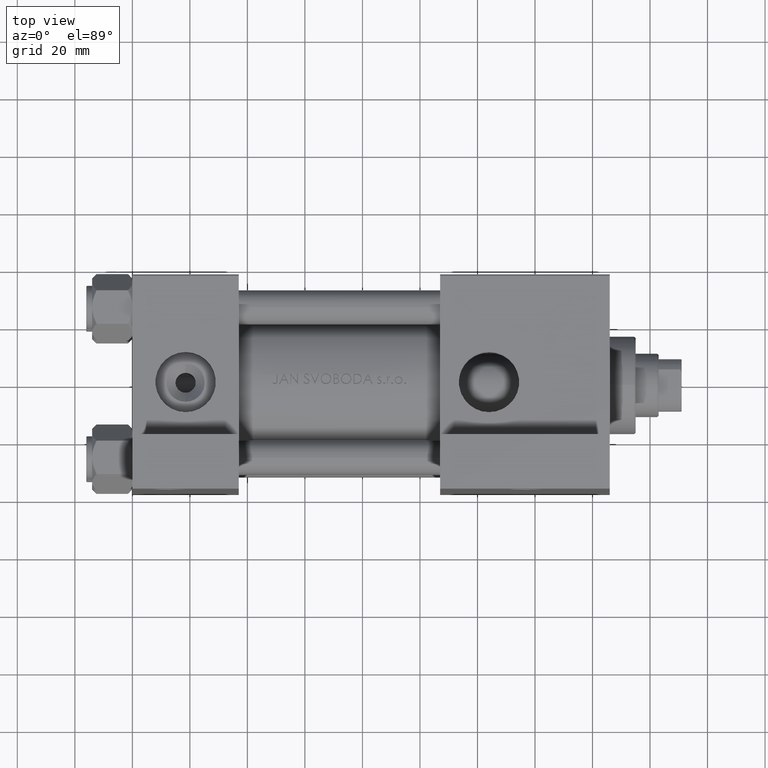
[diagram: clean part render]
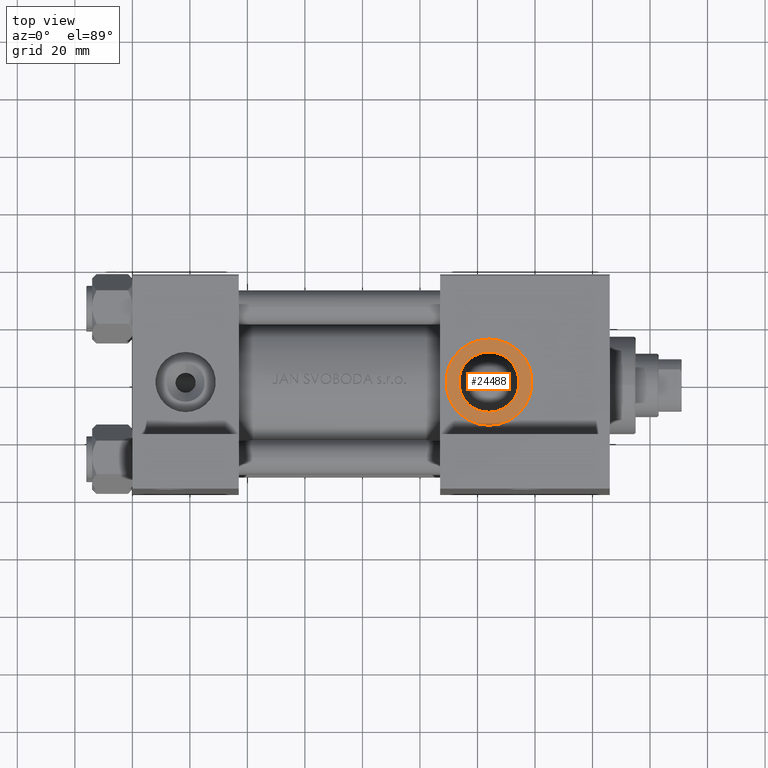
[diagram: same view with one face highlighted and labeled with its STEP entity id]
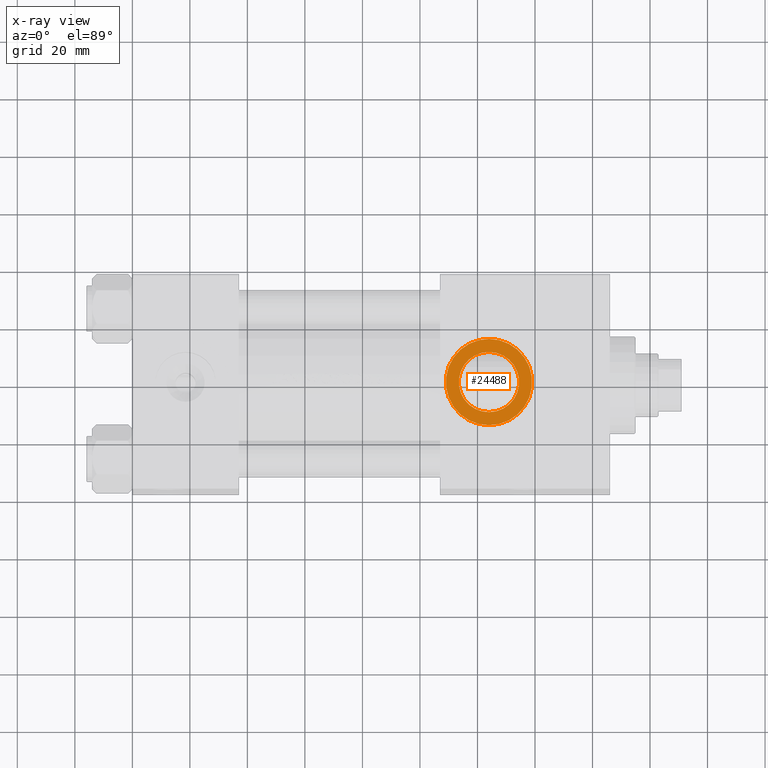
[diagram: x-ray of the same camera — body ghosted, the highlighted face saturated]
A machine part, top view. The second image highlights one B-rep face of the part: STEP entity #24488.
The next image is the same camera in x-ray: the body ghosted, the highlighted face saturated — about 0% of this face is hidden behind the body in this view.
In plain terms, the highlighted planar face has unit normal (0, -0, 1).
Its self-contained STEP definition (entity closure, byte-faithful):
#1822 = EDGE_CURVE ( 'NONE', #44250, #25333, #15879, .T. ) ;
#2973 = CARTESIAN_POINT ( 'NONE',  ( 124.0000000000000142, -37.29999999999999716, -10.47999999999999687 ) ) ;
#3671 = DIRECTION ( 'NONE',  ( 0.000000000000000000, 0.000000000000000000, -1.000000000000000000 ) ) ;
#5374 = EDGE_CURVE ( 'NONE', #34714, #17167, #32580, .T. ) ;
#5871 = CIRCLE ( 'NONE', #33685, 10.48000000000000043 ) ;
#5911 = DIRECTION ( 'NONE',  ( 0.000000000000000000, -1.000000000000000000, -8.673617379884036705E-17 ) ) ;
#8504 = EDGE_CURVE ( 'NONE', #17167, #34714, #5871, .T. ) ;
#8638 = AXIS2_PLACEMENT_3D ( 'NONE', #15024, #26225, #21998 ) ;
#9962 = CIRCLE ( 'NONE', #17871, 15.00000000000001243 ) ;
#11053 = FACE_OUTER_BOUND ( 'NONE', #11498, .T. ) ;
#11158 = DIRECTION ( 'NONE',  ( 0.000000000000000000, -1.000000000000000000, -8.673617379884036705E-17 ) ) ;
#11498 = EDGE_LOOP ( 'NONE', ( #19074, #12375 ) ) ;
#12375 = ORIENTED_EDGE ( 'NONE', *, *, #1822, .T. ) ;
#13583 = EDGE_LOOP ( 'NONE', ( #30209, #15362 ) ) ;
#14363 = CARTESIAN_POINT ( 'NONE',  ( 124.0000000000000142, -37.29999999999999716, -15.00000000000000888 ) ) ;
#15024 = CARTESIAN_POINT ( 'NONE',  ( 124.0000000000000142, -37.29999999999999716, 3.486794186713383443E-15 ) ) ;
#15362 = ORIENTED_EDGE ( 'NONE', *, *, #8504, .F. ) ;
#15879 = CIRCLE ( 'NONE', #19859, 15.00000000000001243 ) ;
#17167 = VERTEX_POINT ( 'NONE', #27516 ) ;
#17871 = AXIS2_PLACEMENT_3D ( 'NONE', #37418, #29931, #37916 ) ;
#19074 = ORIENTED_EDGE ( 'NONE', *, *, #44651, .T. ) ;
#19859 = AXIS2_PLACEMENT_3D ( 'NONE', #22514, #41709, #48930 ) ;
#21092 = CARTESIAN_POINT ( 'NONE',  ( 124.0000000000000142, -37.29999999999999716, 3.486794186713383443E-15 ) ) ;
#21998 = DIRECTION ( 'NONE',  ( 0.000000000000000000, 8.673617379884036705E-17, -1.000000000000000000 ) ) ;
#22514 = CARTESIAN_POINT ( 'NONE',  ( 124.0000000000000142, -37.29999999999999716, 3.486794186713383443E-15 ) ) ;
#24345 = DIRECTION ( 'NONE',  ( 0.000000000000000000, 0.000000000000000000, -1.000000000000000000 ) ) ;
#24488 = ADVANCED_FACE ( 'NONE', ( #45148, #11053 ), #48164, .T. ) ;
#25333 = VERTEX_POINT ( 'NONE', #14363 ) ;
#25398 = AXIS2_PLACEMENT_3D ( 'NONE', #21092, #5911, #24345 ) ;
#26225 = DIRECTION ( 'NONE',  ( 0.000000000000000000, -1.000000000000000000, -8.673617379884036705E-17 ) ) ;
#26987 = CARTESIAN_POINT ( 'NONE',  ( 124.0000000000000142, -37.29999999999999716, 15.00000000000001421 ) ) ;
#27516 = CARTESIAN_POINT ( 'NONE',  ( 124.0000000000000142, -37.29999999999999716, 10.48000000000000398 ) ) ;
#29931 = DIRECTION ( 'NONE',  ( 0.000000000000000000, -1.000000000000000000, -8.673617379884036705E-17 ) ) ;
#30209 = ORIENTED_EDGE ( 'NONE', *, *, #5374, .F. ) ;
#32580 = CIRCLE ( 'NONE', #25398, 10.48000000000000043 ) ;
#33685 = AXIS2_PLACEMENT_3D ( 'NONE', #41531, #11158, #3671 ) ;
#34714 = VERTEX_POINT ( 'NONE', #2973 ) ;
#37418 = CARTESIAN_POINT ( 'NONE',  ( 124.0000000000000142, -37.29999999999999716, 3.486794186713383443E-15 ) ) ;
#37916 = DIRECTION ( 'NONE',  ( 0.000000000000000000, 0.000000000000000000, -1.000000000000000000 ) ) ;
#41531 = CARTESIAN_POINT ( 'NONE',  ( 124.0000000000000142, -37.29999999999999716, 3.486794186713383443E-15 ) ) ;
#41709 = DIRECTION ( 'NONE',  ( 0.000000000000000000, -1.000000000000000000, -8.673617379884036705E-17 ) ) ;
#44250 = VERTEX_POINT ( 'NONE', #26987 ) ;
#44651 = EDGE_CURVE ( 'NONE', #25333, #44250, #9962, .T. ) ;
#45148 = FACE_BOUND ( 'NONE', #13583, .T. ) ;
#48164 = PLANE ( 'NONE',  #8638 ) ;
#48930 = DIRECTION ( 'NONE',  ( 0.000000000000000000, 0.000000000000000000, -1.000000000000000000 ) ) ;